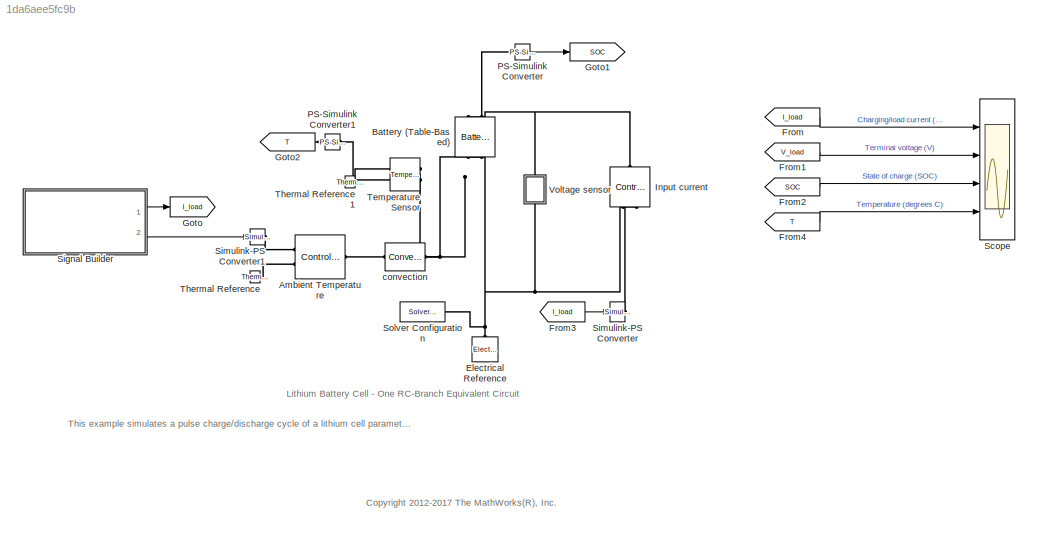
MODEL slx_1da6aee5fc9b
KIND model
CONFIG AbsTol = auto
CONFIG EnableMultiTasking = on
CONFIG FixedStep = auto
CONFIG MaxStep = 60
CONFIG MinStep = auto
CONFIG PreLoadFcn = ssc_lithium_cell_1RC_ini
CONFIG RelTol = 1e-3
CONFIG SampleTimeConstraint = Unconstrained
CONFIG SolverName = ode15s
CONFIG StartTime = 0.0
CONFIG StopTime = 40000
BLOCK [Reference] Ambient Temperature  REF=fl_lib/Thermal/Thermal Sources/Controlled
Temperature Source
  Ports = [0, 0, 0, 0, 0, 1, 2]
  SourceBlock = fl_lib/Thermal/Thermal Sources/Controlled\nTemperature Source
  SourceProductBaseCode = SS
  SourceType = Controlled\nTemperature Source
BLOCK [Reference] Battery (Table-Based)  REF=ee_lib/Sources/Battery
(Table-Based)
  NameLocation = left
  Ports = [0, 0, 0, 0, 0, 2, 2]
  SourceBlock = ee_lib/Sources/Battery\n(Table-Based)
  SourceProductBaseCode = PS
  SourceType = Battery\n(Table-Based)
BLOCK [Reference] Electrical Reference  REF=fl_lib/Electrical/Electrical Elements/Electrical Reference
  NameLocation = right
  Ports = [0, 0, 0, 0, 0, 1]
  SourceBlock = fl_lib/Electrical/Electrical Elements/Electrical Reference
  SourceProductBaseCode = SS
  SourceType = Electrical Reference
BLOCK [From] From
  GotoTag = I_load
  TagVisibility = global
BLOCK [From] From1
  GotoTag = V_load
  TagVisibility = global
BLOCK [From] From2
  GotoTag = SOC
BLOCK [From] From3
  GotoTag = I_load
  TagVisibility = global
BLOCK [From] From4
  GotoTag = T
BLOCK [Goto] Goto
  GotoTag = I_load
  NameLocation = top
  TagVisibility = global
BLOCK [Goto] Goto1
  GotoTag = SOC
  NameLocation = top
BLOCK [Goto] Goto2
  GotoTag = T
  NameLocation = top
BLOCK [Reference] Input current  REF=fl_lib/Electrical/Electrical Sources/Controlled Current
Source
  NameLocation = right
  Ports = [0, 0, 0, 0, 0, 1, 2]
  SourceBlock = fl_lib/Electrical/Electrical Sources/Controlled Current\nSource
  SourceProductBaseCode = SS
  SourceType = Controlled Current\nSource
BLOCK [Reference] PS-Simulink Converter  REF=nesl_utility/PS-Simulink
Converter
  Ports = [0, 1, 0, 0, 0, 1]
  SourceBlock = nesl_utility/PS-Simulink\nConverter
  SourceProductBaseCode = SS
  SourceType = PS-Simulink\nConverter
BLOCK [Reference] PS-Simulink Converter1  REF=nesl_utility/PS-Simulink
Converter
  NameLocation = top
  Ports = [0, 1, 0, 0, 0, 1]
  SourceBlock = nesl_utility/PS-Simulink\nConverter
  SourceProductBaseCode = SS
  SourceType = PS-Simulink\nConverter
BLOCK [Scope] Scope
  Floating = off
  NumInputPorts = 4
  Ports = [4]
  ScopeSpecificationString = Simulink.scopes.TimeScopeBlockCfg('CurrentConfiguration', extmgr.ConfigurationSet(extmgr.Configuration('Core','General UI',true),extmgr.Configuration('Core','Source UI',true),extmgr.Configuration('Sources','WiredSimulink',true,'DataLoggingSaveFormat','StructureWithTime','DataLoggingDecimation','1','DataLoggingDecimateData',true),extmgr.Configuration('Visuals','Time Domain',true,'SerializedDisplays...<+3748ch>
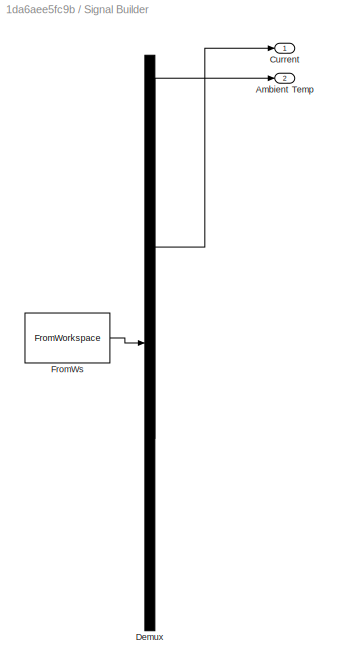
BLOCK [SubSystem] Signal Builder
  ClipboardFcn = sigbuilder_block('clipboard');
  CloseFcn = sigbuilder_block('close');
  ContinueFcn = sigbuilder_block('continue');
  CopyFcn = sigbuilder_block('copy');
  DeleteFcn = sigbuilder_block('delete');
  LoadFcn = sigbuilder_block('load');
  MaskHideContents = on
  ModelCloseFcn = sigbuilder_block('modelClose');
  NameChangeFcn = sigbuilder_block('namechange');
  NameLocation = top
  OpenFcn = sigbuilder_block('open',[33.75 101.25 755.25 399.75 ]);
  PauseFcn = sigbuilder_block('pause');
  Ports = [0, 2]
  PreSaveFcn = sigbuilder_block('preSave');
  RequestExecContextInheritance = off
  StartFcn = sigbuilder_block('start');
  StopFcn = sigbuilder_block('stop');
  Tag = STV Subsys
BLOCK [Outport] Signal Builder/Ambient Temp
  Port = 2
  Tag = STV Outport
  VectorParamsAs1DForOutWhenUnconnected = off
BLOCK [Outport] Signal Builder/Current
  VectorParamsAs1DForOutWhenUnconnected = off
BLOCK [Demux] Signal Builder/Demux
  DisplayOption = none
  Outputs = 2
  Ports = [1, 2]
  Tag = STV Demux
BLOCK [FromWorkspace] Signal Builder/FromWs
  Tag = STV FromWs
  VariableName = tuvar
BLOCK [Reference] Simulink-PS Converter  REF=nesl_utility/Simulink-PS
Converter
  Ports = [1, 0, 0, 0, 0, 0, 1]
  SourceBlock = nesl_utility/Simulink-PS\nConverter
  SourceProductBaseCode = SS
  SourceType = Simulink-PS\nConverter
BLOCK [Reference] Simulink-PS Converter1  REF=nesl_utility/Simulink-PS
Converter
  Ports = [1, 0, 0, 0, 0, 0, 1]
  SourceBlock = nesl_utility/Simulink-PS\nConverter
  SourceProductBaseCode = SS
  SourceType = Simulink-PS\nConverter
BLOCK [Reference] Solver Configuration  REF=nesl_utility/Solver
Configuration
  Ports = [0, 0, 0, 0, 0, 0, 1]
  SourceBlock = nesl_utility/Solver\nConfiguration
  SourceProductBaseCode = SS
  SourceType = Solver\nConfiguration
BLOCK [Reference] Temperature Sensor  REF=fl_lib/Thermal/Thermal Sensors/Temperature Sensor
  NameLocation = top
  Ports = [0, 0, 0, 0, 0, 1, 2]
  SourceBlock = fl_lib/Thermal/Thermal Sensors/Temperature Sensor
  SourceProductBaseCode = SS
  SourceType = Temperature Sensor
BLOCK [Reference] Thermal Reference  REF=fl_lib/Thermal/Thermal Elements/Thermal Reference
  Ports = [0, 0, 0, 0, 0, 1]
  SourceBlock = fl_lib/Thermal/Thermal Elements/Thermal Reference
  SourceProductBaseCode = SS
  SourceType = Thermal Reference
BLOCK [Reference] Thermal Reference1  REF=fl_lib/Thermal/Thermal Elements/Thermal Reference
  Ports = [0, 0, 0, 0, 0, 1]
  SourceBlock = fl_lib/Thermal/Thermal Elements/Thermal Reference
  SourceProductBaseCode = SS
  SourceType = Thermal Reference
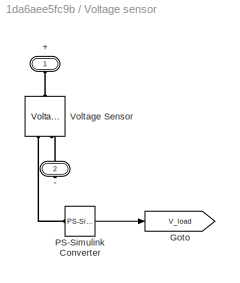
BLOCK [SubSystem] Voltage sensor
  NameLocation = right
  Ports = [0, 0, 0, 0, 0, 1, 1]
  RequestExecContextInheritance = off
BLOCK [PMIOPort] Voltage sensor/+
  NameLocation = right
  Side = Left
BLOCK [PMIOPort] Voltage sensor/-
  NameLocation = right
  Port = 2
  Side = Right
BLOCK [Goto] Voltage sensor/Goto
  GotoTag = V_load
  TagVisibility = global
BLOCK [Reference] Voltage sensor/PS-Simulink Converter  REF=nesl_utility/PS-Simulink
Converter
  Ports = [0, 1, 0, 0, 0, 1]
  SourceBlock = nesl_utility/PS-Simulink\nConverter
  SourceProductBaseCode = SS
  SourceType = PS-Simulink\nConverter
BLOCK [Reference] Voltage sensor/Voltage Sensor  REF=fl_lib/Electrical/Electrical Sensors/Voltage Sensor
  NameLocation = right
  Ports = [0, 0, 0, 0, 0, 1, 2]
  SourceBlock = fl_lib/Electrical/Electrical Sensors/Voltage Sensor
  SourceProductBaseCode = SS
  SourceType = Voltage Sensor
BLOCK [Reference] convection  REF=fl_lib/Thermal/Thermal Elements/Convective Heat
Transfer
  Ports = [0, 0, 0, 0, 0, 1, 1]
  SourceBlock = fl_lib/Thermal/Thermal Elements/Convective Heat\nTransfer
  SourceProductBaseCode = SS
  SourceType = Convective Heat\nTransfer
ANNOTATION (root): <copyright redacted>
ANNOTATION (root): Lithium Battery Cell - One RC-Branch Equivalent Circuit
ANNOTATION (root): This example simulates a pulse charge/discharge cycle of a lithium cell parameterized using an equivalent circuit with one RC branch. A lumped thermal mass models the temperature evolution. It is assumed that cooling is primarily via convection, and that heating is primarily from internal resistance. A battery pack can be modeled by connecting multiple copies of the battery cell block in series.Fo...<+286ch>
LINE From1:1 -> Scope:2
LINE From2:1 -> Scope:3
LINE From3:1 -> Simulink-PS Converter:1
LINE From4:1 -> Scope:4
LINE From:1 -> Scope:1
LINE PS-Simulink Converter1:1 -> Goto2:1
LINE PS-Simulink Converter:1 -> Goto1:1
LINE Signal Builder:1 -> Goto:1
LINE Signal Builder:2 -> Simulink-PS Converter1:1
LINE Voltage sensor/PS-Simulink Converter:1 -> Voltage sensor/Goto:1
PLINE Ambient Temperature:LConn1 -- convection:LConn1
PLINE Ambient Temperature:RConn1 -- Simulink-PS Converter1:RConn1
PLINE Ambient Temperature:RConn2 -- Thermal Reference:LConn1
PNET net1: Battery (Table-Based):LConn1 -- Input current:LConn1 -- Voltage sensor:LConn1
PLINE Battery (Table-Based):LConn2 -- PS-Simulink Converter:LConn1
PNET net2: Battery (Table-Based):RConn1 -- Electrical Reference:LConn1 -- Input current:RConn2 -- Solver Configuration:RConn1 -- Voltage sensor:RConn1
PNET net3: Battery (Table-Based):RConn2 -- Temperature Sensor:LConn1 -- convection:RConn1
PLINE Input current:RConn1 -- Simulink-PS Converter:RConn1
PLINE PS-Simulink Converter1:LConn1 -- Temperature Sensor:RConn2
PLINE Temperature Sensor:RConn1 -- Thermal Reference1:LConn1
PLINE Voltage sensor/+:RConn1 -- Voltage sensor/Voltage Sensor:LConn1
PLINE Voltage sensor/-:RConn1 -- Voltage sensor/Voltage Sensor:RConn2
PLINE Voltage sensor/PS-Simulink Converter:LConn1 -- Voltage sensor/Voltage Sensor:RConn1
note: PNET lines group multi-terminal physical nets as a canonical sorted terminal list (undirected conserving connections); 2-terminal nets keep the pairwise PLINE form
